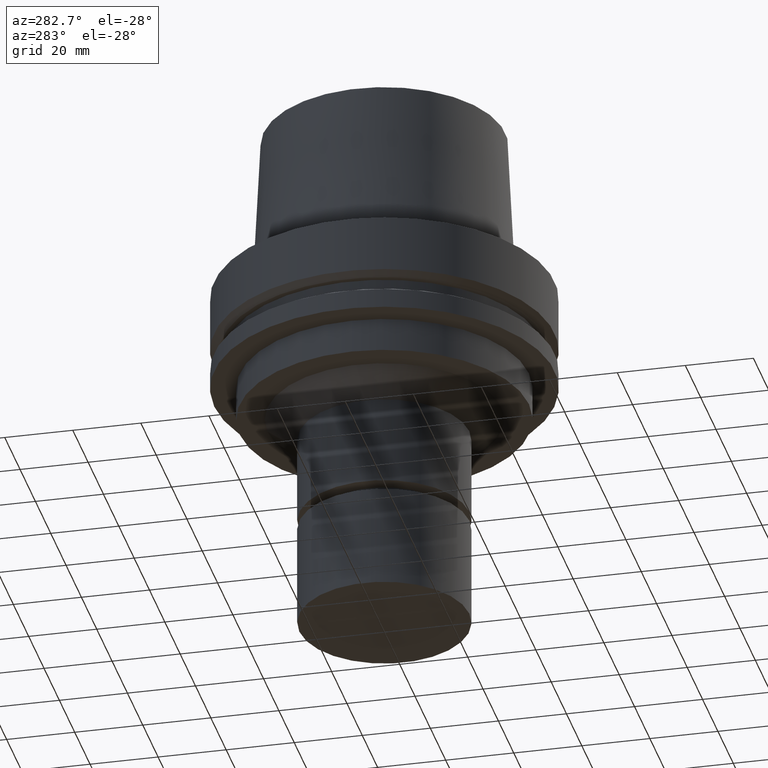
[diagram: clean part render]
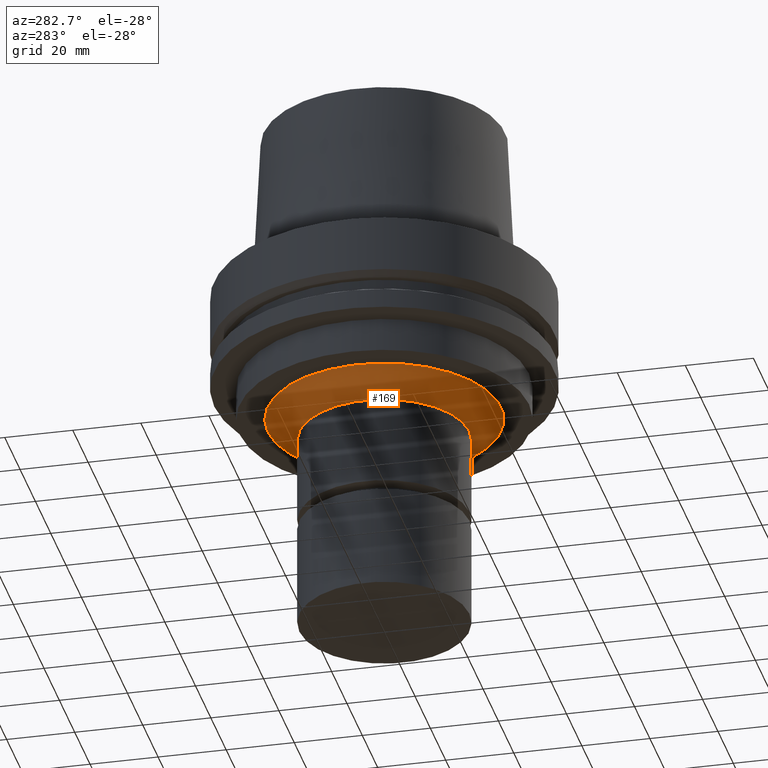
[diagram: same view with one face highlighted and labeled with its STEP entity id]
A machine part, auxiliary view. The second image highlights one B-rep face of the part: STEP entity #169.
In plain terms, the highlighted conical surface has half-angle 54.025 deg.
Its self-contained STEP definition (entity closure, byte-faithful):
#142=EDGE_CURVE('Unnamed[1]',#315,#315,#316,.T.);
#169=ADVANCED_FACE('Unnamed[1]',(#357,#358),#359,.T.);
#173=EDGE_CURVE('Unnamed[1]',#364,#364,#365,.T.);
#315=VERTEX_POINT('',#536);
#316=CIRCLE('',#537,25.0);
#357=FACE_BOUND('',#589,.T.);
#358=FACE_BOUND('',#590,.T.);
#359=CONICAL_SURFACE('',#591,29.6596647228089,0.942916776538433);
#364=VERTEX_POINT('',#598);
#365=CIRCLE('',#599,34.3193294456178);
#536=CARTESIAN_POINT('',(2.80227603553221E-015,25.0,-45.76464067));
#537=AXIS2_PLACEMENT_3D('',#757,#758,#759);
#589=EDGE_LOOP('',(#803));
#590=EDGE_LOOP('',(#804));
#591=AXIS2_PLACEMENT_3D('',#805,#806,#807);
#598=CARTESIAN_POINT('',(2.38806125833734E-015,34.3193294456178,-39.0));
#599=AXIS2_PLACEMENT_3D('',#811,#812,#813);
#757=CARTESIAN_POINT('',(2.80227603553221E-015,5.60455207106443E-015,-45.76464067));
#758=DIRECTION('',(6.12323399573677E-017,1.22464679914735E-016,-1.0));
#759=DIRECTION('',(-1.23259516440783E-032,1.0,1.22464679914735E-016));
#803=ORIENTED_EDGE('',*,*,#142,.F.);
#804=ORIENTED_EDGE('',*,*,#173,.T.);
#805=CARTESIAN_POINT('',(2.59516864693478E-015,5.19033729386955E-015,-42.382320335));
#806=DIRECTION('',(-6.12323399573677E-017,-1.22464679914735E-016,1.0));
#807=DIRECTION('',(-1.23259516440783E-032,1.0,1.22464679914735E-016));
#811=CARTESIAN_POINT('',(2.38806125833734E-015,4.77612251667468E-015,-39.0));
#812=DIRECTION('',(6.12323399573677E-017,1.22464679914735E-016,-1.0));
#813=DIRECTION('',(-1.23259516440783E-032,1.0,1.22464679914735E-016));